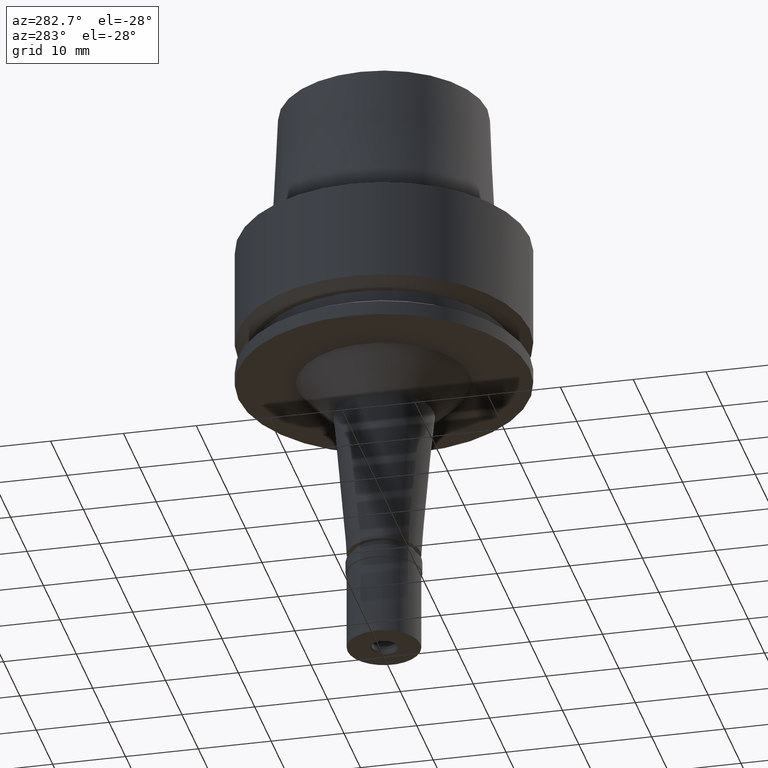
[diagram: clean part render]
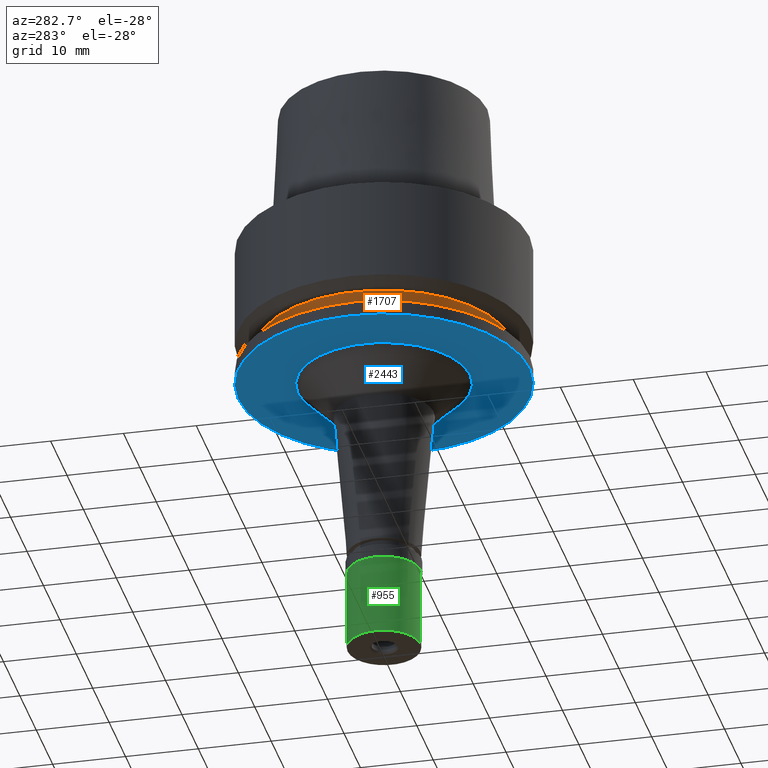
[diagram: same view with three faces highlighted in distinct colors, each labeled with its STEP entity id]
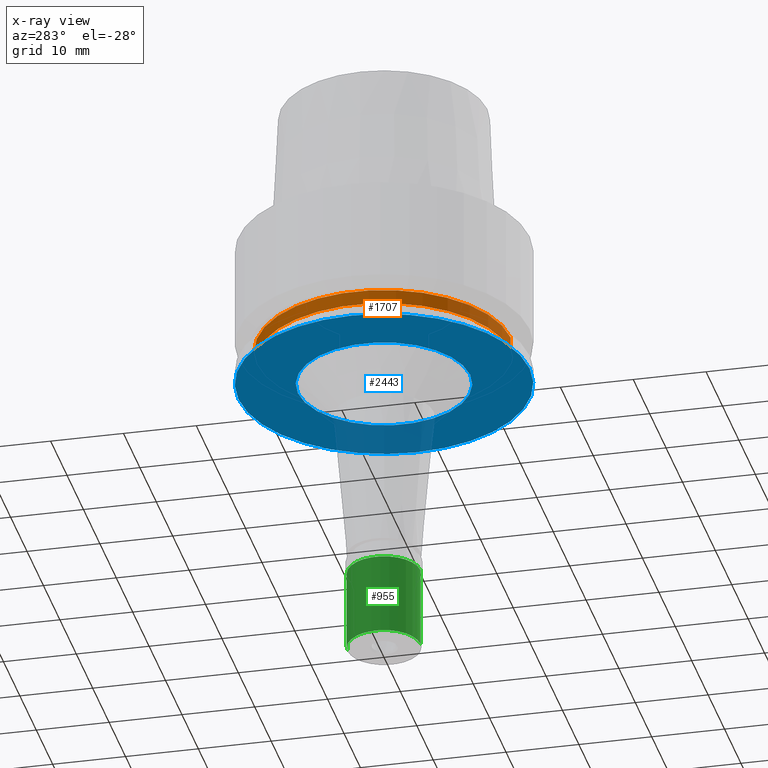
[diagram: x-ray of the same camera — body ghosted, the three highlighted faces saturated]
A machine part, auxiliary view with three faces highlighted in distinct colors.
The next image is the same camera in x-ray (body ghosted, the three faces saturated) — at least one of them is partly hidden behind the body in this view.
Their STEP definitions:

[orange] entity #1707 — the highlighted cylindrical surface (partial cylindrical patch) has radius 17.4 mm, axis along (0, 0, 1).
#121 = ORIENTED_EDGE ( 'NONE', *, *, #2609, .T. ) ;
#127 = EDGE_CURVE ( 'NONE', #342, #300, #2589, .T. ) ;
#272 = AXIS2_PLACEMENT_3D ( 'NONE', #1837, #2488, #2078 ) ;
#300 = VERTEX_POINT ( 'NONE', #2207 ) ;
#330 = ORIENTED_EDGE ( 'NONE', *, *, #1580, .T. ) ;
#342 = VERTEX_POINT ( 'NONE', #2457 ) ;
#394 = VERTEX_POINT ( 'NONE', #993 ) ;
#451 = CIRCLE ( 'NONE', #1529, 17.39999999999999858 ) ;
#475 = FACE_OUTER_BOUND ( 'NONE', #869, .T. ) ;
#686 = DIRECTION ( 'NONE',  ( 0.0000000000000000000, 1.000000000000000000, 0.0000000000000000000 ) ) ;
#759 = VERTEX_POINT ( 'NONE', #1239 ) ;
#869 = EDGE_LOOP ( 'NONE', ( #1699, #1909, #330, #121 ) ) ;
#922 = CARTESIAN_POINT ( 'NONE',  ( 0.0000000000000000000, -17.39999999999999858, -15.00000000000000000 ) ) ;
#993 = CARTESIAN_POINT ( 'NONE',  ( 0.0000000000000000000, 17.39999999999999858, -15.00000000000000000 ) ) ;
#1063 = LINE ( 'NONE', #1906, #2628 ) ;
#1094 = CIRCLE ( 'NONE', #272, 17.39999999999999858 ) ;
#1116 = DIRECTION ( 'NONE',  ( 0.0000000000000000000, 0.0000000000000000000, 1.000000000000000000 ) ) ;
#1122 = DIRECTION ( 'NONE',  ( 0.0000000000000000000, 0.0000000000000000000, -1.000000000000000000 ) ) ;
#1239 = CARTESIAN_POINT ( 'NONE',  ( 0.0000000000000000000, 17.39999999999999858, -17.00000000000000000 ) ) ;
#1287 = CYLINDRICAL_SURFACE ( 'NONE', #1788, 17.39999999999999858 ) ;
#1376 = DIRECTION ( 'NONE',  ( 0.0000000000000000000, 1.000000000000000000, 0.0000000000000000000 ) ) ;
#1506 = CARTESIAN_POINT ( 'NONE',  ( 0.0000000000000000000, 0.0000000000000000000, -17.00000000000000000 ) ) ;
#1529 = AXIS2_PLACEMENT_3D ( 'NONE', #1506, #2364, #1376 ) ;
#1580 = EDGE_CURVE ( 'NONE', #342, #394, #1094, .T. ) ;
#1699 = ORIENTED_EDGE ( 'NONE', *, *, #2389, .T. ) ;
#1707 = ADVANCED_FACE ( 'NONE', ( #475 ), #1287, .T. ) ;
#1788 = AXIS2_PLACEMENT_3D ( 'NONE', #2555, #1116, #686 ) ;
#1837 = CARTESIAN_POINT ( 'NONE',  ( 0.0000000000000000000, 0.0000000000000000000, -15.00000000000000000 ) ) ;
#1906 = CARTESIAN_POINT ( 'NONE',  ( 0.0000000000000000000, 17.39999999999999858, -15.00000000000000000 ) ) ;
#1909 = ORIENTED_EDGE ( 'NONE', *, *, #127, .F. ) ;
#2078 = DIRECTION ( 'NONE',  ( 0.0000000000000000000, -1.000000000000000000, 0.0000000000000000000 ) ) ;
#2207 = CARTESIAN_POINT ( 'NONE',  ( 0.0000000000000000000, -17.39999999999999858, -17.00000000000000000 ) ) ;
#2316 = DIRECTION ( 'NONE',  ( 0.0000000000000000000, 0.0000000000000000000, -1.000000000000000000 ) ) ;
#2364 = DIRECTION ( 'NONE',  ( 0.0000000000000000000, 0.0000000000000000000, 1.000000000000000000 ) ) ;
#2389 = EDGE_CURVE ( 'NONE', #759, #300, #451, .T. ) ;
#2457 = CARTESIAN_POINT ( 'NONE',  ( 0.0000000000000000000, -17.39999999999999858, -15.00000000000000000 ) ) ;
#2488 = DIRECTION ( 'NONE',  ( 0.0000000000000000000, 0.0000000000000000000, -1.000000000000000000 ) ) ;
#2529 = VECTOR ( 'NONE', #1122, 1000.000000000000000 ) ;
#2555 = CARTESIAN_POINT ( 'NONE',  ( 0.0000000000000000000, 0.0000000000000000000, -60.11500000000000199 ) ) ;
#2589 = LINE ( 'NONE', #922, #2529 ) ;
#2609 = EDGE_CURVE ( 'NONE', #394, #759, #1063, .T. ) ;
#2628 = VECTOR ( 'NONE', #2316, 1000.000000000000000 ) ;

[blue] entity #2443 — the highlighted planar face has unit normal (0, 0, 1).
#67 = DIRECTION ( 'NONE',  ( 0.0000000000000000000, 0.0000000000000000000, 1.000000000000000000 ) ) ;
#162 = CARTESIAN_POINT ( 'NONE',  ( 0.0000000000000000000, 0.0000000000000000000, -20.00000000000000000 ) ) ;
#239 = DIRECTION ( 'NONE',  ( 0.0000000000000000000, -1.000000000000000000, 0.0000000000000000000 ) ) ;
#289 = EDGE_CURVE ( 'NONE', #719, #374, #560, .T. ) ;
#331 = CARTESIAN_POINT ( 'NONE',  ( 0.0000000000000000000, -11.83726193404000071, -20.00000000000000000 ) ) ;
#341 = DIRECTION ( 'NONE',  ( 1.000000000000000000, 0.0000000000000000000, 0.0000000000000000000 ) ) ;
#345 = AXIS2_PLACEMENT_3D ( 'NONE', #495, #67, #888 ) ;
#374 = VERTEX_POINT ( 'NONE', #331 ) ;
#455 = EDGE_LOOP ( 'NONE', ( #597, #2102 ) ) ;
#495 = CARTESIAN_POINT ( 'NONE',  ( 0.0000000000000000000, 0.0000000000000000000, -20.00000000000000000 ) ) ;
#560 = CIRCLE ( 'NONE', #2308, 11.83726193404000071 ) ;
#597 = ORIENTED_EDGE ( 'NONE', *, *, #289, .F. ) ;
#622 = ORIENTED_EDGE ( 'NONE', *, *, #677, .F. ) ;
#677 = EDGE_CURVE ( 'NONE', #1050, #1470, #1653, .T. ) ;
#719 = VERTEX_POINT ( 'NONE', #1684 ) ;
#836 = DIRECTION ( 'NONE',  ( 0.0000000000000000000, 0.0000000000000000000, -1.000000000000000000 ) ) ;
#888 = DIRECTION ( 'NONE',  ( 0.0000000000000000000, 1.000000000000000000, 0.0000000000000000000 ) ) ;
#981 = FACE_BOUND ( 'NONE', #455, .T. ) ;
#1007 = DIRECTION ( 'NONE',  ( 0.0000000000000000000, 0.0000000000000000000, 1.000000000000000000 ) ) ;
#1048 = EDGE_CURVE ( 'NONE', #1470, #1050, #1827, .T. ) ;
#1050 = VERTEX_POINT ( 'NONE', #1306 ) ;
#1057 = AXIS2_PLACEMENT_3D ( 'NONE', #1576, #1639, #341 ) ;
#1161 = PLANE ( 'NONE',  #1057 ) ;
#1306 = CARTESIAN_POINT ( 'NONE',  ( 0.0000000000000000000, -20.00000000000000000, -20.00000000000000000 ) ) ;
#1310 = AXIS2_PLACEMENT_3D ( 'NONE', #2306, #836, #239 ) ;
#1362 = DIRECTION ( 'NONE',  ( 0.0000000000000000000, 1.000000000000000000, 0.0000000000000000000 ) ) ;
#1470 = VERTEX_POINT ( 'NONE', #2283 ) ;
#1576 = CARTESIAN_POINT ( 'NONE',  ( 0.0000000000000000000, 0.0000000000000000000, -20.00000000000000000 ) ) ;
#1599 = EDGE_CURVE ( 'NONE', #374, #719, #2233, .T. ) ;
#1639 = DIRECTION ( 'NONE',  ( 0.0000000000000000000, 0.0000000000000000000, 1.000000000000000000 ) ) ;
#1653 = CIRCLE ( 'NONE', #2618, 20.00000000000000000 ) ;
#1684 = CARTESIAN_POINT ( 'NONE',  ( 0.0000000000000000000, 11.83726193404000071, -20.00000000000000000 ) ) ;
#1827 = CIRCLE ( 'NONE', #345, 20.00000000000000000 ) ;
#1833 = EDGE_LOOP ( 'NONE', ( #1864, #622 ) ) ;
#1846 = DIRECTION ( 'NONE',  ( 0.0000000000000000000, -1.000000000000000000, 0.0000000000000000000 ) ) ;
#1864 = ORIENTED_EDGE ( 'NONE', *, *, #1048, .F. ) ;
#2102 = ORIENTED_EDGE ( 'NONE', *, *, #1599, .F. ) ;
#2111 = CARTESIAN_POINT ( 'NONE',  ( 0.0000000000000000000, 0.0000000000000000000, -20.00000000000000000 ) ) ;
#2233 = CIRCLE ( 'NONE', #1310, 11.83726193404000071 ) ;
#2283 = CARTESIAN_POINT ( 'NONE',  ( 0.0000000000000000000, 20.00000000000000000, -20.00000000000000000 ) ) ;
#2306 = CARTESIAN_POINT ( 'NONE',  ( 0.0000000000000000000, 0.0000000000000000000, -20.00000000000000000 ) ) ;
#2308 = AXIS2_PLACEMENT_3D ( 'NONE', #162, #2430, #1362 ) ;
#2430 = DIRECTION ( 'NONE',  ( 0.0000000000000000000, 0.0000000000000000000, -1.000000000000000000 ) ) ;
#2443 = ADVANCED_FACE ( 'NONE', ( #2689, #981 ), #1161, .F. ) ;
#2618 = AXIS2_PLACEMENT_3D ( 'NONE', #2111, #1007, #1846 ) ;
#2689 = FACE_OUTER_BOUND ( 'NONE', #1833, .T. ) ;

[green] entity #955 — the highlighted cylindrical surface (partial cylindrical patch) has radius 5 mm, axis along (0, 0, 1).
#84 = EDGE_CURVE ( 'NONE', #2462, #2441, #881, .T. ) ;
#109 = VERTEX_POINT ( 'NONE', #302 ) ;
#154 = ORIENTED_EDGE ( 'NONE', *, *, #84, .T. ) ;
#288 = CYLINDRICAL_SURFACE ( 'NONE', #1701, 5.000000000000000000 ) ;
#295 = ORIENTED_EDGE ( 'NONE', *, *, #862, .T. ) ;
#302 = CARTESIAN_POINT ( 'NONE',  ( 0.0000000000000000000, -5.000000000000000000, -13.00000000000000000 ) ) ;
#360 = DIRECTION ( 'NONE',  ( 0.0000000000000000000, -1.000000000000000000, 0.0000000000000000000 ) ) ;
#435 = FACE_OUTER_BOUND ( 'NONE', #1540, .T. ) ;
#486 = CARTESIAN_POINT ( 'NONE',  ( 0.0000000000000000000, -5.000000000000000000, -1.800000000000000044 ) ) ;
#524 = CIRCLE ( 'NONE', #787, 5.000000000000000000 ) ;
#553 = CARTESIAN_POINT ( 'NONE',  ( 0.0000000000000000000, 0.0000000000000000000, -1.800000000000000044 ) ) ;
#665 = VERTEX_POINT ( 'NONE', #2300 ) ;
#716 = CARTESIAN_POINT ( 'NONE',  ( 0.0000000000000000000, 0.0000000000000000000, -13.00000000000000000 ) ) ;
#739 = VECTOR ( 'NONE', #746, 1000.000000000000000 ) ;
#746 = DIRECTION ( 'NONE',  ( 0.0000000000000000000, 0.0000000000000000000, -1.000000000000000000 ) ) ;
#787 = AXIS2_PLACEMENT_3D ( 'NONE', #716, #1771, #1153 ) ;
#862 = EDGE_CURVE ( 'NONE', #2441, #109, #524, .T. ) ;
#864 = DIRECTION ( 'NONE',  ( 0.0000000000000000000, 0.0000000000000000000, 1.000000000000000000 ) ) ;
#878 = DIRECTION ( 'NONE',  ( 0.0000000000000000000, 1.000000000000000000, 0.0000000000000000000 ) ) ;
#881 = LINE ( 'NONE', #2361, #989 ) ;
#935 = LINE ( 'NONE', #486, #739 ) ;
#955 = ADVANCED_FACE ( 'NONE', ( #435 ), #288, .T. ) ;
#989 = VECTOR ( 'NONE', #1711, 1000.000000000000000 ) ;
#1035 = ORIENTED_EDGE ( 'NONE', *, *, #1898, .T. ) ;
#1153 = DIRECTION ( 'NONE',  ( 0.0000000000000000000, 1.000000000000000000, 0.0000000000000000000 ) ) ;
#1262 = CARTESIAN_POINT ( 'NONE',  ( 0.0000000000000000000, 0.0000000000000000000, -13.65000000000000036 ) ) ;
#1536 = AXIS2_PLACEMENT_3D ( 'NONE', #553, #2238, #360 ) ;
#1540 = EDGE_LOOP ( 'NONE', ( #295, #2483, #1035, #154 ) ) ;
#1701 = AXIS2_PLACEMENT_3D ( 'NONE', #1262, #864, #878 ) ;
#1711 = DIRECTION ( 'NONE',  ( 0.0000000000000000000, 0.0000000000000000000, -1.000000000000000000 ) ) ;
#1771 = DIRECTION ( 'NONE',  ( 0.0000000000000000000, 0.0000000000000000000, 1.000000000000000000 ) ) ;
#1898 = EDGE_CURVE ( 'NONE', #665, #2462, #2638, .T. ) ;
#2238 = DIRECTION ( 'NONE',  ( 0.0000000000000000000, 0.0000000000000000000, -1.000000000000000000 ) ) ;
#2263 = CARTESIAN_POINT ( 'NONE',  ( 0.0000000000000000000, 5.000000000000000000, -13.00000000000000000 ) ) ;
#2265 = EDGE_CURVE ( 'NONE', #665, #109, #935, .T. ) ;
#2300 = CARTESIAN_POINT ( 'NONE',  ( 0.0000000000000000000, -5.000000000000000000, -1.800000000000000044 ) ) ;
#2361 = CARTESIAN_POINT ( 'NONE',  ( 0.0000000000000000000, 5.000000000000000000, -1.800000000000000044 ) ) ;
#2441 = VERTEX_POINT ( 'NONE', #2263 ) ;
#2462 = VERTEX_POINT ( 'NONE', #2482 ) ;
#2482 = CARTESIAN_POINT ( 'NONE',  ( 0.0000000000000000000, 5.000000000000000000, -1.800000000000000044 ) ) ;
#2483 = ORIENTED_EDGE ( 'NONE', *, *, #2265, .F. ) ;
#2638 = CIRCLE ( 'NONE', #1536, 5.000000000000000000 ) ;